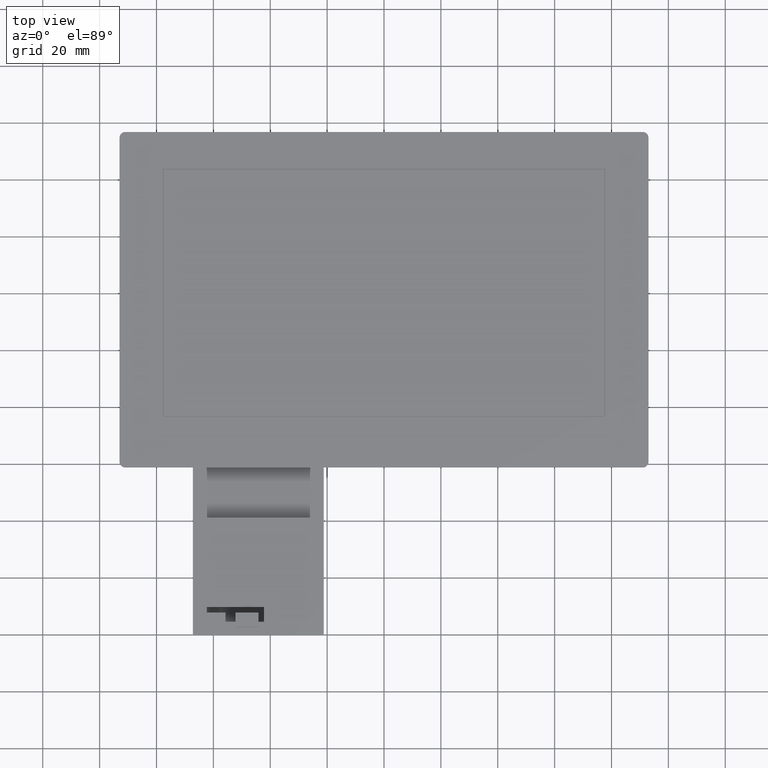
[diagram: clean part render]
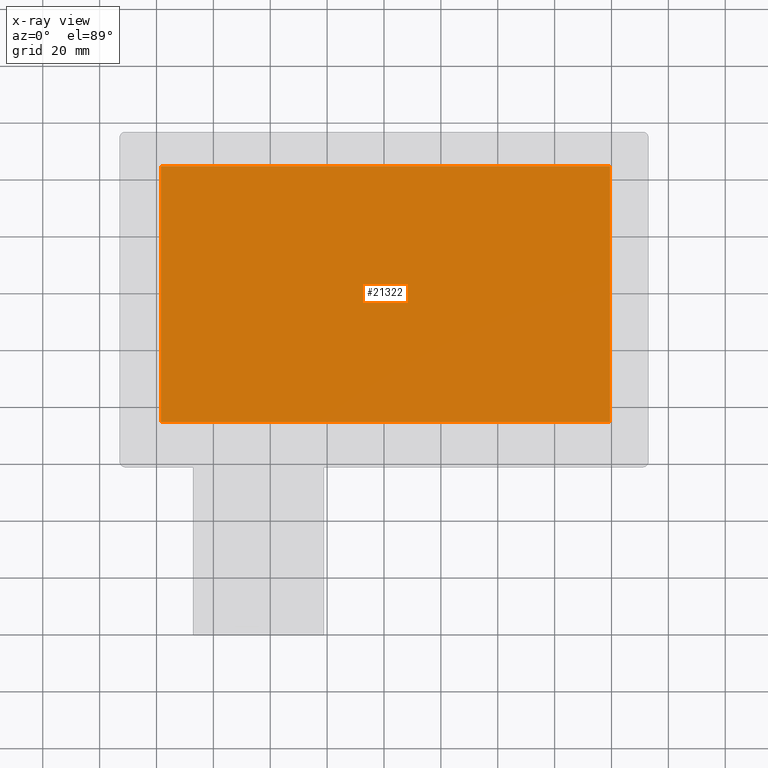
[diagram: x-ray — body ghosted, one internal face saturated and labeled with its STEP entity id]
A machine part, top view, then the same camera in x-ray: the body is ghosted and one INTERNAL B-rep face — a face not visible from any outside direction — is saturated and labeled: STEP entity #21322.
In plain terms, the highlighted planar face has unit normal (0, 0, -1).
Its self-contained STEP definition (entity closure, byte-faithful):
#819=FACE_OUTER_BOUND('',#1961,.T.);
#1961=EDGE_LOOP('',(#14097,#14098,#14099,#14100));
#3233=LINE('',#30164,#5978);
#3234=LINE('',#30167,#5979);
#3235=LINE('',#30169,#5980);
#3236=LINE('',#30170,#5981);
#5978=VECTOR('',#24190,10.);
#5979=VECTOR('',#24193,10.);
#5980=VECTOR('',#24194,10.);
#5981=VECTOR('',#24195,10.);
#8698=VERTEX_POINT('',#30157);
#8701=VERTEX_POINT('',#30162);
#8702=VERTEX_POINT('',#30166);
#8703=VERTEX_POINT('',#30168);
#10821=EDGE_CURVE('',#8698,#8701,#3233,.T.);
#10822=EDGE_CURVE('',#8701,#8702,#3234,.T.);
#10823=EDGE_CURVE('',#8702,#8703,#3235,.T.);
#10824=EDGE_CURVE('',#8703,#8698,#3236,.T.);
#14097=ORIENTED_EDGE('',*,*,#10822,.T.);
#14098=ORIENTED_EDGE('',*,*,#10823,.T.);
#14099=ORIENTED_EDGE('',*,*,#10824,.T.);
#14100=ORIENTED_EDGE('',*,*,#10821,.T.);
#20403=PLANE('',#22485);
#21322=ADVANCED_FACE('',(#819),#20403,.T.);
#22485=AXIS2_PLACEMENT_3D('',#30165,#24191,#24192);
#24190=DIRECTION('',(-1.,-2.9582283945788E-31,0.));
#24191=DIRECTION('center_axis',(0.,0.,-1.));
#24192=DIRECTION('ref_axis',(-1.,0.,0.));
#24193=DIRECTION('',(0.,1.,0.));
#24194=DIRECTION('',(1.,7.42461647718078E-16,0.));
#24195=DIRECTION('',(-1.06619481721278E-30,-1.,0.));
#30157=CARTESIAN_POINT('',(79.5149999999997,-45.3599999999998,-1.49999999999998));
#30162=CARTESIAN_POINT('',(-78.4850000000001,-45.3599999999998,-1.49999999999998));
#30164=CARTESIAN_POINT('',(-39.6975000000001,-45.3599999999998,-1.49999999999999));
#30165=CARTESIAN_POINT('Origin',(-0.910000000000013,-52.36,-1.49999999999999));
#30166=CARTESIAN_POINT('',(-78.485,44.6400000000001,-1.49999999999998));
#30167=CARTESIAN_POINT('',(-78.485,-3.85999999999997,-1.49999999999999));
#30168=CARTESIAN_POINT('',(79.515,44.6400000000001,-1.49999999999998));
#30169=CARTESIAN_POINT('',(39.3025,44.64,-1.49999999999999));
#30170=CARTESIAN_POINT('',(79.5149999999997,-48.8599999999999,-1.49999999999999));